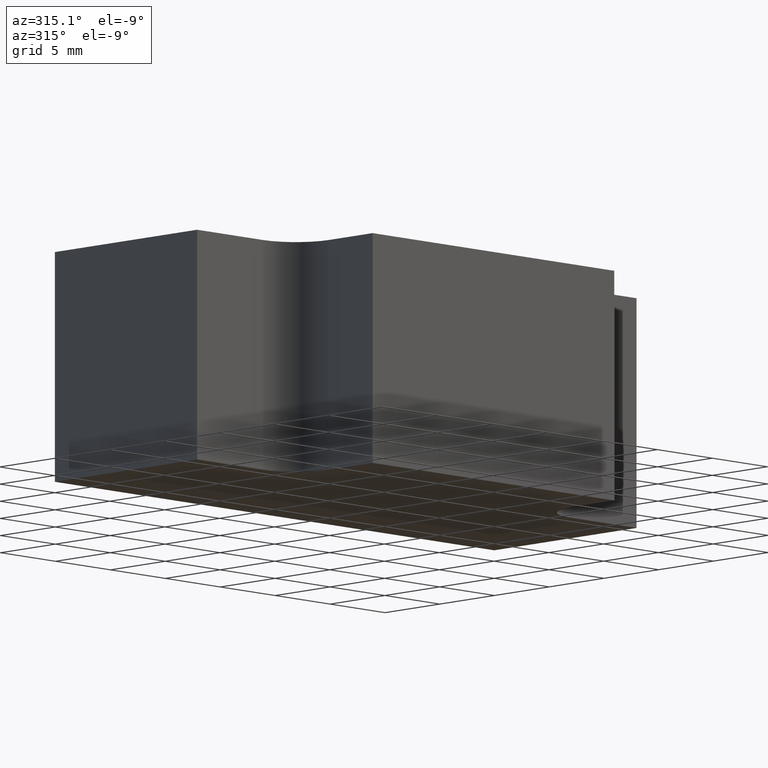
[diagram: clean part render]
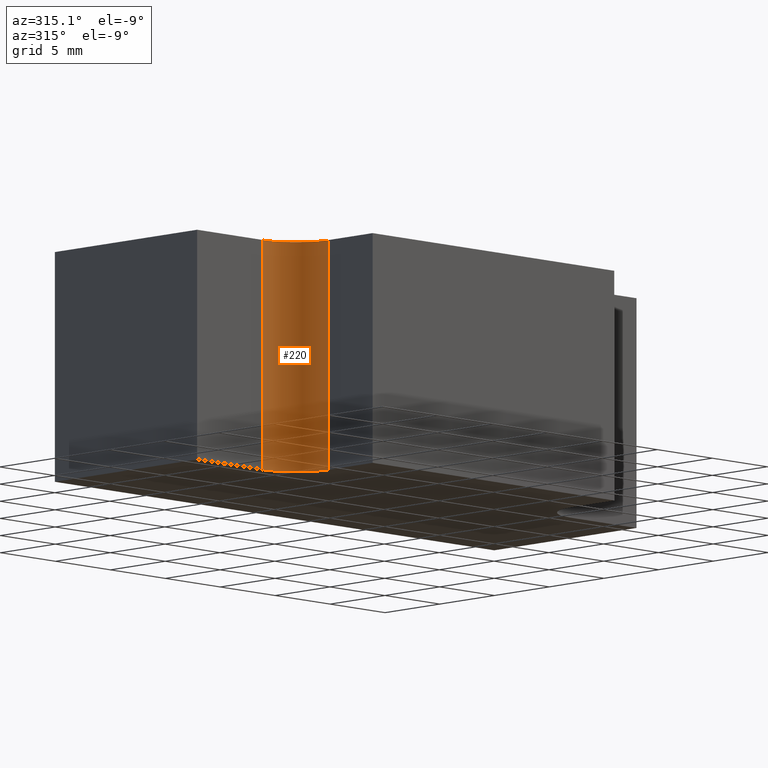
[diagram: same view with one face highlighted and labeled with its STEP entity id]
A machine part, auxiliary view. The second image highlights one B-rep face of the part: STEP entity #220.
In plain terms, the highlighted cylindrical surface (partial cylindrical patch) has radius 3 mm, axis along (0, 0, 1).
Its self-contained STEP definition (entity closure, byte-faithful):
#15=CYLINDRICAL_SURFACE('',#257,3.);
#20=FACE_OUTER_BOUND('',#32,.T.);
#32=EDGE_LOOP('',(#165,#166,#167,#168));
#53=LINE('',#359,#79);
#54=LINE('',#363,#80);
#79=VECTOR('',#292,10.);
#80=VECTOR('',#297,10.);
#94=CIRCLE('',#254,3.);
#95=CIRCLE('',#258,3.);
#101=VERTEX_POINT('',#337);
#102=VERTEX_POINT('',#339);
#109=VERTEX_POINT('',#357);
#110=VERTEX_POINT('',#361);
#121=EDGE_CURVE('',#102,#101,#94,.T.);
#131=EDGE_CURVE('',#101,#109,#53,.T.);
#132=EDGE_CURVE('',#109,#110,#95,.T.);
#133=EDGE_CURVE('',#102,#110,#54,.T.);
#165=ORIENTED_EDGE('',*,*,#132,.T.);
#166=ORIENTED_EDGE('',*,*,#133,.F.);
#167=ORIENTED_EDGE('',*,*,#121,.T.);
#168=ORIENTED_EDGE('',*,*,#131,.T.);
#220=ADVANCED_FACE('',(#20),#15,.F.);
#254=AXIS2_PLACEMENT_3D('',#340,#277,#278);
#257=AXIS2_PLACEMENT_3D('',#360,#293,#294);
#258=AXIS2_PLACEMENT_3D('',#362,#295,#296);
#277=DIRECTION('center_axis',(0.,0.,-1.));
#278=DIRECTION('ref_axis',(-1.,0.,0.));
#292=DIRECTION('',(0.,0.,1.));
#293=DIRECTION('center_axis',(0.,0.,1.));
#294=DIRECTION('ref_axis',(-1.,0.,0.));
#295=DIRECTION('center_axis',(0.,0.,1.));
#296=DIRECTION('ref_axis',(-1.,0.,0.));
#297=DIRECTION('',(0.,0.,1.));
#337=CARTESIAN_POINT('',(-11.,-16.,-7.5));
#339=CARTESIAN_POINT('',(-14.,-13.,-7.5));
#340=CARTESIAN_POINT('Origin',(-14.,-16.,-7.5));
#357=CARTESIAN_POINT('',(-11.,-16.,7.5));
#359=CARTESIAN_POINT('',(-11.,-16.,0.));
#360=CARTESIAN_POINT('Origin',(-14.,-16.,0.));
#361=CARTESIAN_POINT('',(-14.,-13.,7.5));
#362=CARTESIAN_POINT('Origin',(-14.,-16.,7.5));
#363=CARTESIAN_POINT('',(-14.,-13.,0.));